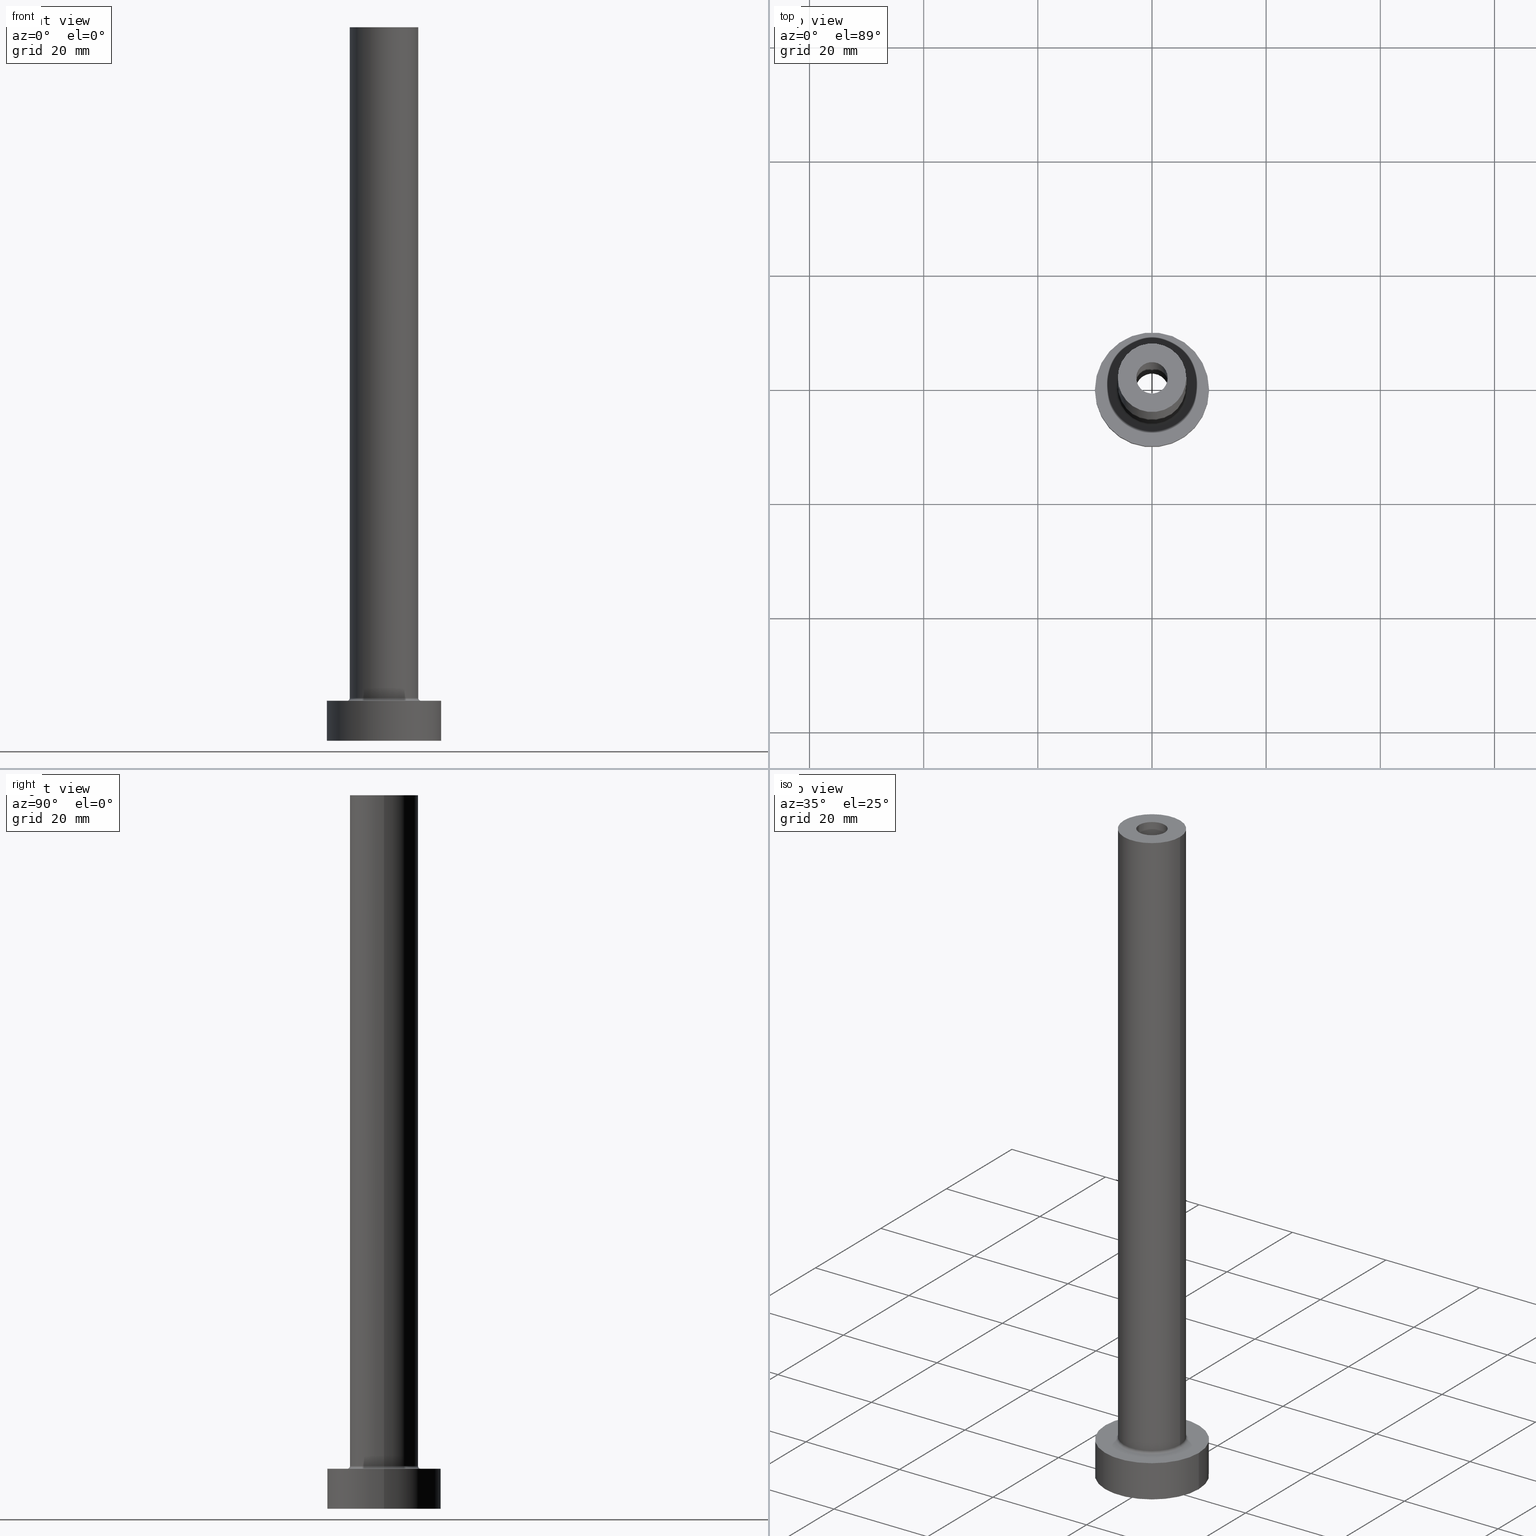
[diagram: canonical four-view strip — front | top / right | iso, engineering-drawing reading convention]
A machine part, canonical four-view strip (front | top / right | iso — engineering-drawing reading convention). The complete STEP part file that produces these views, byte-faithful:
ISO-10303-21;
HEADER;
FILE_DESCRIPTION (( 'STEP AP203' ),
    '1' );
FILE_NAME ('6ca6.STEP',
    '2023-02-13T15:56:22',
    ( '' ),
    ( '' ),
    'SwSTEP 2.0',
    'SolidWorks 2019',
    '' );
FILE_SCHEMA (( 'CONFIG_CONTROL_DESIGN' ));
ENDSEC;

DATA;
#1 = VERTEX_POINT ( 'NONE', #100 ) ;
#2 = FACE_BOUND ( 'NONE', #112, .T. ) ;
#3 = APPROVAL ( #46, 'NEUR�EN�' ) ;
#4 = DIRECTION ( 'NONE',  ( -0.000000000000000000, -0.000000000000000000, -1.000000000000000000 ) ) ;
#5 = ORIENTED_EDGE ( 'NONE', *, *, #302, .F. ) ;
#6 = LINE ( 'NONE', #214, #7 ) ;
#7 = VECTOR ( 'NONE', #350, 1000.000000000000000 ) ;
#8 = PERSON_AND_ORGANIZATION_ROLE ( 'creator' ) ;
#9 = EDGE_CURVE ( 'NONE', #28, #1, #431, .T. ) ;
#10 = PERSON_AND_ORGANIZATION_ROLE ( 'design_supplier' ) ;
#11 = PERSON_AND_ORGANIZATION ( #146, #275 ) ;
#12 = VECTOR ( 'NONE', #396, 1000.000000000000000 ) ;
#13 = PLANE ( 'NONE',  #339 ) ;
#14 = VERTEX_POINT ( 'NONE', #104 ) ;
#15 = CARTESIAN_POINT ( 'NONE',  ( 0.000000000000000000, 0.000000000000000000, 80.00000000000000000 ) ) ;
#16 = EDGE_CURVE ( 'NONE', #460, #14, #407, .T. ) ;
#17 = ORIENTED_EDGE ( 'NONE', *, *, #385, .T. ) ;
#18 = CARTESIAN_POINT ( 'NONE',  ( -6.500000000000000888, 7.960204194457796463E-16, 7.500000000000007105 ) ) ;
#19 = ORIENTED_EDGE ( 'NONE', *, *, #194, .F. ) ;
#20 = EDGE_CURVE ( 'NONE', #106, #128, #195, .T. ) ;
#21 = LINE ( 'NONE', #342, #56 ) ;
#22 = ORIENTED_EDGE ( 'NONE', *, *, #330, .T. ) ;
#23 = CARTESIAN_POINT ( 'NONE',  ( 0.000000000000000000, 0.000000000000000000, 0.000000000000000000 ) ) ;
#24 = CARTESIAN_POINT ( 'NONE',  ( 2.750000000000000000, 3.367778697655220519E-16, 125.0000000000000000 ) ) ;
#25 = ORIENTED_EDGE ( 'NONE', *, *, #202, .T. ) ;
#26 = AXIS2_PLACEMENT_3D ( 'NONE', #114, #295, #374 ) ;
#27 = ADVANCED_FACE ( 'NONE', ( #161 ), #232, .T. ) ;
#28 = VERTEX_POINT ( 'NONE', #410 ) ;
#29 = LINE ( 'NONE', #24, #322 ) ;
#30 = DIRECTION ( 'NONE',  ( 1.000000000000000000, 0.000000000000000000, 0.000000000000000000 ) ) ;
#31 = ORIENTED_EDGE ( 'NONE', *, *, #16, .T. ) ;
#32 = FACE_BOUND ( 'NONE', #309, .T. ) ;
#33 = DIRECTION ( 'NONE',  ( 1.000000000000000000, 0.000000000000000000, 0.000000000000000000 ) ) ;
#34 = AXIS2_PLACEMENT_3D ( 'NONE', #303, #88, #30 ) ;
#35 = VECTOR ( 'NONE', #274, 1000.000000000000000 ) ;
#36 = CC_DESIGN_PERSON_AND_ORGANIZATION_ASSIGNMENT ( #86, #364, ( #327 ) ) ;
#37 = FACE_OUTER_BOUND ( 'NONE', #370, .T. ) ;
#38 = CARTESIAN_POINT ( 'NONE',  ( -6.500000000000000888, 7.960204194457796463E-16, 7.000000000000002665 ) ) ;
#39 = DIRECTION ( 'NONE',  ( 1.000000000000000000, 0.000000000000000000, 0.000000000000000000 ) ) ;
#40 =( LENGTH_UNIT ( ) NAMED_UNIT ( * ) SI_UNIT ( .MILLI., .METRE. ) );
#41 = ADVANCED_FACE ( 'NONE', ( #441 ), #224, .F. ) ;
#42 = DIRECTION ( 'NONE',  ( 1.000000000000000000, 0.000000000000000000, -0.000000000000000000 ) ) ;
#43 = VERTEX_POINT ( 'NONE', #126 ) ;
#44 = LOCAL_TIME ( 16, 56, 22.00000000000000000, #265 ) ;
#45 = VECTOR ( 'NONE', #47, 1000.000000000000000 ) ;
#46 = APPROVAL_STATUS ( 'not_yet_approved' ) ;
#47 = DIRECTION ( 'NONE',  ( 0.000000000000000000, 0.000000000000000000, -1.000000000000000000 ) ) ;
#48 = CC_DESIGN_PERSON_AND_ORGANIZATION_ASSIGNMENT ( #411, #10, ( #73 ) ) ;
#49 = CALENDAR_DATE ( 2023, 13, 2 ) ;
#50 = APPROVAL ( #325, 'NEUR�EN�' ) ;
#51 = AXIS2_PLACEMENT_3D ( 'NONE', #289, #68, #108 ) ;
#52 = EDGE_CURVE ( 'NONE', #406, #65, #105, .T. ) ;
#53 = DIRECTION ( 'NONE',  ( 1.000000000000000000, 0.000000000000000000, 0.000000000000000000 ) ) ;
#54 = VERTEX_POINT ( 'NONE', #249 ) ;
#55 = AXIS2_PLACEMENT_3D ( 'NONE', #247, #144, #461 ) ;
#56 = VECTOR ( 'NONE', #136, 1000.000000000000000 ) ;
#57 = DIRECTION ( 'NONE',  ( -1.000000000000000000, 1.224646799147351482E-16, 0.000000000000000000 ) ) ;
#58 = DIRECTION ( 'NONE',  ( 0.000000000000000000, 0.000000000000000000, 1.000000000000000000 ) ) ;
#59 = DIRECTION ( 'NONE',  ( -0.000000000000000000, -0.000000000000000000, -1.000000000000000000 ) ) ;
#60 = ORIENTED_EDGE ( 'NONE', *, *, #83, .T. ) ;
#61 = ORIENTED_EDGE ( 'NONE', *, *, #385, .F. ) ;
#62 = DIRECTION ( 'NONE',  ( 0.000000000000000000, 0.000000000000000000, -1.000000000000000000 ) ) ;
#63 = AXIS2_PLACEMENT_3D ( 'NONE', #414, #169, #204 ) ;
#64 = CARTESIAN_POINT ( 'NONE',  ( 0.000000000000000000, 0.000000000000000000, 7.000000000000000000 ) ) ;
#65 = VERTEX_POINT ( 'NONE', #254 ) ;
#66 = AXIS2_PLACEMENT_3D ( 'NONE', #305, #389, #376 ) ;
#67 = CARTESIAN_POINT ( 'NONE',  ( 0.000000000000000000, 0.000000000000000000, 80.00000000000000000 ) ) ;
#68 = DIRECTION ( 'NONE',  ( 0.000000000000000000, 0.000000000000000000, 1.000000000000000000 ) ) ;
#69 = CARTESIAN_POINT ( 'NONE',  ( 0.000000000000000000, 0.000000000000000000, 125.0000000000000000 ) ) ;
#70 = EDGE_CURVE ( 'NONE', #160, #345, #219, .T. ) ;
#71 = DIRECTION ( 'NONE',  ( 1.000000000000000000, 0.000000000000000000, 0.000000000000000000 ) ) ;
#72 = MECHANICAL_CONTEXT ( 'NONE', #148, 'mechanical' ) ;
#73 = PRODUCT_DEFINITION_FORMATION_WITH_SPECIFIED_SOURCE ( 'LIBOVOLN�', '', #327, .NOT_KNOWN. ) ;
#74 = VECTOR ( 'NONE', #178, 1000.000000000000000 ) ;
#75 = EDGE_CURVE ( 'NONE', #152, #160, #253, .T. ) ;
#76 = DIRECTION ( 'NONE',  ( 0.000000000000000000, 0.000000000000000000, 1.000000000000000000 ) ) ;
#77 = EDGE_LOOP ( 'NONE', ( #310, #212 ) ) ;
#78 = CALENDAR_DATE ( 2023, 13, 2 ) ;
#79 = ORIENTED_EDGE ( 'NONE', *, *, #163, .F. ) ;
#80 = LINE ( 'NONE', #371, #45 ) ;
#81 = APPROVAL_ROLE ( '' ) ;
#82 = ORIENTED_EDGE ( 'NONE', *, *, #351, .T. ) ;
#83 = EDGE_CURVE ( 'NONE', #43, #434, #222, .T. ) ;
#84 = COORDINATED_UNIVERSAL_TIME_OFFSET ( 1, 0, .AHEAD. ) ;
#85 = CC_DESIGN_APPROVAL ( #50, ( #453 ) ) ;
#86 = PERSON_AND_ORGANIZATION ( #146, #275 ) ;
#87 = ADVANCED_FACE ( 'NONE', ( #227, #192 ), #13, .F. ) ;
#88 = DIRECTION ( 'NONE',  ( 0.000000000000000000, 0.000000000000000000, 1.000000000000000000 ) ) ;
#89 = CYLINDRICAL_SURFACE ( 'NONE', #418, 6.000000000000000888 ) ;
#90 = LOCAL_TIME ( 16, 56, 22.00000000000000000, #369 ) ;
#91 = CARTESIAN_POINT ( 'NONE',  ( 10.00000000000000000, 1.224646799147353256E-15, 7.000000000000000000 ) ) ;
#92 = DIRECTION ( 'NONE',  ( 0.000000000000000000, 0.000000000000000000, 1.000000000000000000 ) ) ;
#93 = EDGE_CURVE ( 'NONE', #54, #345, #409, .T. ) ;
#94 = ORIENTED_EDGE ( 'NONE', *, *, #271, .T. ) ;
#95 = DIRECTION ( 'NONE',  ( 0.000000000000000000, -1.000000000000000000, 0.000000000000000000 ) ) ;
#96 = ORIENTED_EDGE ( 'NONE', *, *, #271, .F. ) ;
#97 = APPROVAL_PERSON_ORGANIZATION ( #228, #122, #81 ) ;
#98 = CARTESIAN_POINT ( 'NONE',  ( 0.000000000000000000, 0.000000000000000000, 7.500000000000007105 ) ) ;
#99 = CIRCLE ( 'NONE', #331, 6.500000000000000888 ) ;
#100 = CARTESIAN_POINT ( 'NONE',  ( 2.750000000000000000, 3.367778697655220519E-16, 80.00000000000000000 ) ) ;
#101 = ADVANCED_BREP_SHAPE_REPRESENTATION ( '6ca6', ( #153, #157 ), #132 ) ;
#102 = EDGE_CURVE ( 'NONE', #460, #406, #80, .T. ) ;
#103 = APPLICATION_PROTOCOL_DEFINITION ( 'international standard', 'config_control_design', 1994, #148 ) ;
#104 = CARTESIAN_POINT ( 'NONE',  ( -2.899999999999999911, 0.000000000000000000, 80.00000000000000000 ) ) ;
#105 = CIRCLE ( 'NONE', #63, 2.899999999999999911 ) ;
#106 = VERTEX_POINT ( 'NONE', #334 ) ;
#107 = EDGE_CURVE ( 'NONE', #259, #137, #99, .T. ) ;
#108 = DIRECTION ( 'NONE',  ( 1.000000000000000000, 0.000000000000000000, 0.000000000000000000 ) ) ;
#109 = CIRCLE ( 'NONE', #378, 0.5000000000000004441 ) ;
#110 = CARTESIAN_POINT ( 'NONE',  ( 0.000000000000000000, 0.000000000000000000, 0.000000000000000000 ) ) ;
#111 = PERSON_AND_ORGANIZATION ( #146, #275 ) ;
#112 = EDGE_LOOP ( 'NONE', ( #320, #206 ) ) ;
#113 = APPROVAL_ROLE ( '' ) ;
#114 = CARTESIAN_POINT ( 'NONE',  ( 0.000000000000000000, 0.000000000000000000, 7.000000000000000000 ) ) ;
#115 = PRODUCT_DEFINITION_SHAPE ( 'NONE', 'NONE',  #417 ) ;
#116 = EDGE_CURVE ( 'NONE', #65, #406, #124, .T. ) ;
#117 = COORDINATED_UNIVERSAL_TIME_OFFSET ( 1, 0, .AHEAD. ) ;
#118 = CARTESIAN_POINT ( 'NONE',  ( 0.000000000000000000, 0.000000000000000000, 125.0000000000000000 ) ) ;
#119 = EDGE_LOOP ( 'NONE', ( #425, #284, #25, #164 ) ) ;
#120 = SHAPE_DEFINITION_REPRESENTATION ( #115, #101 ) ;
#121 = ORIENTED_EDGE ( 'NONE', *, *, #252, .F. ) ;
#122 = APPROVAL ( #151, 'NEUR�EN�' ) ;
#123 = AXIS2_PLACEMENT_3D ( 'NONE', #133, #448, #53 ) ;
#124 = CIRCLE ( 'NONE', #143, 2.899999999999999911 ) ;
#125 = DIRECTION ( 'NONE',  ( 1.224646799147353207E-16, 1.000000000000000000, -0.000000000000000000 ) ) ;
#126 = CARTESIAN_POINT ( 'NONE',  ( -2.750000000000000000, 0.000000000000000000, 125.0000000000000000 ) ) ;
#127 = CARTESIAN_POINT ( 'NONE',  ( 6.500000000000000888, 0.000000000000000000, 7.500000000000007105 ) ) ;
#128 = VERTEX_POINT ( 'NONE', #344 ) ;
#129 = CARTESIAN_POINT ( 'NONE',  ( 6.000000000000000888, 7.347880794884120722E-16, 125.0000000000000000 ) ) ;
#130 = CARTESIAN_POINT ( 'NONE',  ( -6.000000000000000888, 0.000000000000000000, 125.0000000000000000 ) ) ;
#131 = CIRCLE ( 'NONE', #401, 10.00000000000000000 ) ;
#132 =( GEOMETRIC_REPRESENTATION_CONTEXT ( 3 ) GLOBAL_UNCERTAINTY_ASSIGNED_CONTEXT ( ( #421 ) ) GLOBAL_UNIT_ASSIGNED_CONTEXT ( ( #40, #147, #286 ) ) REPRESENTATION_CONTEXT ( 'NONE', 'WORKASPACE' ) );
#133 = CARTESIAN_POINT ( 'NONE',  ( 0.000000000000000000, 0.000000000000000000, 80.00000000000000000 ) ) ;
#134 = ORIENTED_EDGE ( 'NONE', *, *, #20, .T. ) ;
#135 = ORIENTED_EDGE ( 'NONE', *, *, #163, .T. ) ;
#136 = DIRECTION ( 'NONE',  ( 0.000000000000000000, 0.000000000000000000, -1.000000000000000000 ) ) ;
#137 = VERTEX_POINT ( 'NONE', #38 ) ;
#138 = PLANE ( 'NONE',  #268 ) ;
#139 = AXIS2_PLACEMENT_3D ( 'NONE', #149, #393, #145 ) ;
#140 = ORIENTED_EDGE ( 'NONE', *, *, #367, .T. ) ;
#141 = AXIS2_PLACEMENT_3D ( 'NONE', #183, #58, #306 ) ;
#142 = ORIENTED_EDGE ( 'NONE', *, *, #252, .T. ) ;
#143 = AXIS2_PLACEMENT_3D ( 'NONE', #23, #307, #276 ) ;
#144 = DIRECTION ( 'NONE',  ( 0.000000000000000000, 0.000000000000000000, 1.000000000000000000 ) ) ;
#145 = DIRECTION ( 'NONE',  ( 1.000000000000000000, 0.000000000000000000, 0.000000000000000000 ) ) ;
#146 = PERSON ( 'NEUR�EN�', 'NEUR�EN�', 'NEUR�EN�', ('NEUR�EN�'), ('NEUR�EN�'), ('NEUR�EN�') ) ;
#147 =( NAMED_UNIT ( * ) PLANE_ANGLE_UNIT ( ) SI_UNIT ( $, .RADIAN. ) );
#148 = APPLICATION_CONTEXT ( 'configuration controlled 3d designs of mechanical parts and assemblies' ) ;
#149 = CARTESIAN_POINT ( 'NONE',  ( 0.000000000000000000, 0.000000000000000000, 80.00000000000000000 ) ) ;
#150 = DIRECTION ( 'NONE',  ( -1.000000000000000000, 0.000000000000000000, 0.000000000000000000 ) ) ;
#151 = APPROVAL_STATUS ( 'not_yet_approved' ) ;
#152 = VERTEX_POINT ( 'NONE', #395 ) ;
#153 = MANIFOLD_SOLID_BREP ( 'Odebrat vysunut�m4', #338 ) ;
#154 = DATE_AND_TIME ( #49, #44 ) ;
#155 = ADVANCED_FACE ( 'NONE', ( #2, #316 ), #248, .T. ) ;
#156 = CARTESIAN_POINT ( 'NONE',  ( 0.000000000000000000, 0.000000000000000000, 7.500000000000007105 ) ) ;
#157 = AXIS2_PLACEMENT_3D ( 'NONE', #251, #359, #429 ) ;
#158 = DIRECTION ( 'NONE',  ( 1.000000000000000000, 0.000000000000000000, -0.000000000000000000 ) ) ;
#159 = CALENDAR_DATE ( 2023, 13, 2 ) ;
#160 = VERTEX_POINT ( 'NONE', #130 ) ;
#161 = FACE_OUTER_BOUND ( 'NONE', #388, .T. ) ;
#162 = DIRECTION ( 'NONE',  ( 1.000000000000000000, 0.000000000000000000, -0.000000000000000000 ) ) ;
#163 = EDGE_CURVE ( 'NONE', #128, #106, #131, .T. ) ;
#164 = ORIENTED_EDGE ( 'NONE', *, *, #450, .T. ) ;
#165 = AXIS2_PLACEMENT_3D ( 'NONE', #362, #324, #71 ) ;
#166 = ORIENTED_EDGE ( 'NONE', *, *, #70, .F. ) ;
#167 = CARTESIAN_POINT ( 'NONE',  ( 6.500000000000000888, 0.000000000000000000, 7.000000000000002665 ) ) ;
#168 = CARTESIAN_POINT ( 'NONE',  ( 0.000000000000000000, 0.000000000000000000, 125.0000000000000000 ) ) ;
#169 = DIRECTION ( 'NONE',  ( -0.000000000000000000, -0.000000000000000000, -1.000000000000000000 ) ) ;
#170 = DIRECTION ( 'NONE',  ( 1.000000000000000000, 0.000000000000000000, 0.000000000000000000 ) ) ;
#171 = EDGE_CURVE ( 'NONE', #128, #357, #368, .T. ) ;
#172 = FACE_OUTER_BOUND ( 'NONE', #201, .T. ) ;
#173 = DIRECTION ( 'NONE',  ( 0.000000000000000000, 0.000000000000000000, 1.000000000000000000 ) ) ;
#174 = AXIS2_PLACEMENT_3D ( 'NONE', #352, #221, #394 ) ;
#175 = ORIENTED_EDGE ( 'NONE', *, *, #190, .T. ) ;
#176 = DIRECTION ( 'NONE',  ( 0.000000000000000000, 0.000000000000000000, -1.000000000000000000 ) ) ;
#177 = EDGE_LOOP ( 'NONE', ( #134, #135 ) ) ;
#178 = DIRECTION ( 'NONE',  ( -0.000000000000000000, -0.000000000000000000, -1.000000000000000000 ) ) ;
#179 = ADVANCED_FACE ( 'NONE', ( #172 ), #89, .T. ) ;
#180 = FACE_OUTER_BOUND ( 'NONE', #384, .T. ) ;
#181 = AXIS2_PLACEMENT_3D ( 'NONE', #210, #62, #341 ) ;
#182 = DIRECTION ( 'NONE',  ( 1.000000000000000000, 0.000000000000000000, -0.000000000000000000 ) ) ;
#183 = CARTESIAN_POINT ( 'NONE',  ( 0.000000000000000000, 0.000000000000000000, 125.0000000000000000 ) ) ;
#184 = DIRECTION ( 'NONE',  ( 0.000000000000000000, 0.000000000000000000, 1.000000000000000000 ) ) ;
#185 = EDGE_LOOP ( 'NONE', ( #392, #196, #140, #336 ) ) ;
#186 = DIRECTION ( 'NONE',  ( 0.000000000000000000, 0.000000000000000000, 1.000000000000000000 ) ) ;
#187 = APPROVAL_DATE_TIME ( #366, #122 ) ;
#188 = ORIENTED_EDGE ( 'NONE', *, *, #337, .T. ) ;
#189 = DATE_TIME_ROLE ( 'classification_date' ) ;
#190 = EDGE_CURVE ( 'NONE', #1, #28, #257, .T. ) ;
#191 = CARTESIAN_POINT ( 'NONE',  ( 0.000000000000000000, 0.000000000000000000, 7.000000000000000000 ) ) ;
#192 = FACE_OUTER_BOUND ( 'NONE', #277, .T. ) ;
#193 = CC_DESIGN_APPROVAL ( #3, ( #73 ) ) ;
#194 = EDGE_CURVE ( 'NONE', #345, #137, #109, .T. ) ;
#195 = CIRCLE ( 'NONE', #317, 10.00000000000000000 ) ;
#196 = ORIENTED_EDGE ( 'NONE', *, *, #311, .T. ) ;
#197 = CYLINDRICAL_SURFACE ( 'NONE', #174, 2.899999999999999911 ) ;
#198 = APPROVAL_PERSON_ORGANIZATION ( #328, #3, #293 ) ;
#199 = AXIS2_PLACEMENT_3D ( 'NONE', #207, #312, #423 ) ;
#200 = CYLINDRICAL_SURFACE ( 'NONE', #181, 2.899999999999999911 ) ;
#201 = EDGE_LOOP ( 'NONE', ( #298, #22, #353, #166 ) ) ;
#202 = EDGE_CURVE ( 'NONE', #106, #243, #241, .T. ) ;
#203 = DIRECTION ( 'NONE',  ( -1.000000000000000000, 0.000000000000000000, 0.000000000000000000 ) ) ;
#204 = DIRECTION ( 'NONE',  ( 1.000000000000000000, 0.000000000000000000, 0.000000000000000000 ) ) ;
#205 = EDGE_LOOP ( 'NONE', ( #121, #217, #459, #343 ) ) ;
#206 = ORIENTED_EDGE ( 'NONE', *, *, #302, .T. ) ;
#207 = CARTESIAN_POINT ( 'NONE',  ( 0.000000000000000000, 0.000000000000000000, 7.500000000000007105 ) ) ;
#208 = ADVANCED_FACE ( 'NONE', ( #235 ), #200, .F. ) ;
#209 = ORIENTED_EDGE ( 'NONE', *, *, #234, .T. ) ;
#210 = CARTESIAN_POINT ( 'NONE',  ( 0.000000000000000000, 0.000000000000000000, 88.20243866176396352 ) ) ;
#211 = DIRECTION ( 'NONE',  ( 1.000000000000000000, 0.000000000000000000, 0.000000000000000000 ) ) ;
#212 = ORIENTED_EDGE ( 'NONE', *, *, #52, .F. ) ;
#213 = CARTESIAN_POINT ( 'NONE',  ( 0.000000000000000000, 0.000000000000000000, 7.000000000000000000 ) ) ;
#214 = CARTESIAN_POINT ( 'NONE',  ( -2.750000000000000000, 0.000000000000000000, 125.0000000000000000 ) ) ;
#215 = APPROVAL_PERSON_ORGANIZATION ( #111, #50, #113 ) ;
#216 = FACE_OUTER_BOUND ( 'NONE', #283, .T. ) ;
#217 = ORIENTED_EDGE ( 'NONE', *, *, #194, .T. ) ;
#218 = AXIS2_PLACEMENT_3D ( 'NONE', #67, #92, #233 ) ;
#219 = LINE ( 'NONE', #250, #12 ) ;
#220 = DIRECTION ( 'NONE',  ( 0.000000000000000000, 0.000000000000000000, 1.000000000000000000 ) ) ;
#221 = DIRECTION ( 'NONE',  ( 0.000000000000000000, 0.000000000000000000, -1.000000000000000000 ) ) ;
#222 = CIRCLE ( 'NONE', #141, 2.750000000000000000 ) ;
#223 = APPLICATION_PROTOCOL_DEFINITION ( 'international standard', 'config_control_design', 1994, #416 ) ;
#224 = CYLINDRICAL_SURFACE ( 'NONE', #415, 2.750000000000000000 ) ;
#225 = DATE_AND_TIME ( #408, #400 ) ;
#226 = DIRECTION ( 'NONE',  ( -1.000000000000000000, 0.000000000000000000, 0.000000000000000000 ) ) ;
#227 = FACE_BOUND ( 'NONE', #315, .T. ) ;
#228 = PERSON_AND_ORGANIZATION ( #146, #275 ) ;
#229 = DIRECTION ( 'NONE',  ( 0.000000000000000000, 0.000000000000000000, 1.000000000000000000 ) ) ;
#230 = DATE_AND_TIME ( #297, #319 ) ;
#231 = ORIENTED_EDGE ( 'NONE', *, *, #171, .T. ) ;
#232 = CYLINDRICAL_SURFACE ( 'NONE', #26, 10.00000000000000000 ) ;
#233 = DIRECTION ( 'NONE',  ( 1.000000000000000000, 0.000000000000000000, 0.000000000000000000 ) ) ;
#234 = EDGE_CURVE ( 'NONE', #160, #152, #237, .T. ) ;
#235 = FACE_OUTER_BOUND ( 'NONE', #446, .T. ) ;
#236 = ORIENTED_EDGE ( 'NONE', *, *, #330, .F. ) ;
#237 = CIRCLE ( 'NONE', #34, 6.000000000000000888 ) ;
#238 = CIRCLE ( 'NONE', #435, 10.00000000000000000 ) ;
#239 = FACE_OUTER_BOUND ( 'NONE', #119, .T. ) ;
#240 = DESIGN_CONTEXT ( 'detailed design', #416, 'design' ) ;
#241 = LINE ( 'NONE', #387, #74 ) ;
#242 = ADVANCED_FACE ( 'NONE', ( #239 ), #449, .T. ) ;
#243 = VERTEX_POINT ( 'NONE', #270 ) ;
#244 = DIRECTION ( 'NONE',  ( -1.000000000000000000, 0.000000000000000000, 0.000000000000000000 ) ) ;
#245 = CIRCLE ( 'NONE', #123, 2.899999999999999911 ) ;
#246 = ORIENTED_EDGE ( 'NONE', *, *, #102, .T. ) ;
#247 = CARTESIAN_POINT ( 'NONE',  ( 0.000000000000000000, 0.000000000000000000, 7.500000000000007105 ) ) ;
#248 = PLANE ( 'NONE',  #355 ) ;
#249 = CARTESIAN_POINT ( 'NONE',  ( 6.000000000000000888, 7.347880794884120722E-16, 7.500000000000007105 ) ) ;
#250 = CARTESIAN_POINT ( 'NONE',  ( -6.000000000000000888, 0.000000000000000000, 125.0000000000000000 ) ) ;
#251 = CARTESIAN_POINT ( 'NONE',  ( 0.000000000000000000, 0.000000000000000000, 0.000000000000000000 ) ) ;
#252 = EDGE_CURVE ( 'NONE', #345, #54, #365, .T. ) ;
#253 = CIRCLE ( 'NONE', #165, 6.000000000000000888 ) ;
#254 = CARTESIAN_POINT ( 'NONE',  ( -2.899999999999999911, 0.000000000000000000, 0.000000000000000000 ) ) ;
#255 = CC_DESIGN_SECURITY_CLASSIFICATION ( #453, ( #73 ) ) ;
#256 = DIRECTION ( 'NONE',  ( 0.000000000000000000, 0.000000000000000000, 1.000000000000000000 ) ) ;
#257 = CIRCLE ( 'NONE', #218, 2.750000000000000000 ) ;
#258 = DIRECTION ( 'NONE',  ( 0.000000000000000000, 0.000000000000000000, 1.000000000000000000 ) ) ;
#259 = VERTEX_POINT ( 'NONE', #167 ) ;
#260 = CC_DESIGN_DATE_AND_TIME_ASSIGNMENT ( #154, #438, ( #417 ) ) ;
#261 = PERSON_AND_ORGANIZATION_ROLE ( 'classification_officer' ) ;
#262 = TOROIDAL_SURFACE ( 'NONE', #55, 6.500000000000000888, 0.5000000000000000000 ) ;
#263 = DIRECTION ( 'NONE',  ( 0.000000000000000000, 0.000000000000000000, -1.000000000000000000 ) ) ;
#264 = VECTOR ( 'NONE', #383, 1000.000000000000000 ) ;
#265 = COORDINATED_UNIVERSAL_TIME_OFFSET ( 1, 0, .AHEAD. ) ;
#266 = APPROVAL_DATE_TIME ( #230, #50 ) ;
#267 = PERSON_AND_ORGANIZATION ( #146, #275 ) ;
#268 = AXIS2_PLACEMENT_3D ( 'NONE', #110, #184, #182 ) ;
#269 = ORIENTED_EDGE ( 'NONE', *, *, #52, .T. ) ;
#270 = CARTESIAN_POINT ( 'NONE',  ( -10.00000000000000000, 0.000000000000000000, 0.000000000000000000 ) ) ;
#271 = EDGE_CURVE ( 'NONE', #14, #65, #21, .T. ) ;
#272 = DIRECTION ( 'NONE',  ( 0.000000000000000000, 0.000000000000000000, -1.000000000000000000 ) ) ;
#273 = ORIENTED_EDGE ( 'NONE', *, *, #311, .F. ) ;
#274 = DIRECTION ( 'NONE',  ( -0.000000000000000000, -0.000000000000000000, -1.000000000000000000 ) ) ;
#275 = ORGANIZATION ( 'NEUR�EN�', 'NEUR�EN�', '' ) ;
#276 = DIRECTION ( 'NONE',  ( 1.000000000000000000, 0.000000000000000000, 0.000000000000000000 ) ) ;
#277 = EDGE_LOOP ( 'NONE', ( #386, #399 ) ) ;
#278 = CARTESIAN_POINT ( 'NONE',  ( 10.00000000000000000, 1.224646799147353256E-15, 0.000000000000000000 ) ) ;
#279 = EDGE_CURVE ( 'NONE', #54, #259, #290, .T. ) ;
#280 = ORIENTED_EDGE ( 'NONE', *, *, #70, .T. ) ;
#281 = ORIENTED_EDGE ( 'NONE', *, *, #367, .F. ) ;
#282 = CARTESIAN_POINT ( 'NONE',  ( 0.000000000000000000, 0.000000000000000000, 125.0000000000000000 ) ) ;
#283 = EDGE_LOOP ( 'NONE', ( #209, #348 ) ) ;
#284 = ORIENTED_EDGE ( 'NONE', *, *, #20, .F. ) ;
#285 = FACE_OUTER_BOUND ( 'NONE', #205, .T. ) ;
#286 =( NAMED_UNIT ( * ) SI_UNIT ( $, .STERADIAN. ) SOLID_ANGLE_UNIT ( ) );
#287 = CARTESIAN_POINT ( 'NONE',  ( 2.899999999999999911, 3.551475717527323832E-16, 0.000000000000000000 ) ) ;
#288 = ORIENTED_EDGE ( 'NONE', *, *, #116, .T. ) ;
#289 = CARTESIAN_POINT ( 'NONE',  ( 0.000000000000000000, 0.000000000000000000, 80.00000000000000000 ) ) ;
#290 = CIRCLE ( 'NONE', #363, 0.5000000000000004441 ) ;
#291 = PLANE ( 'NONE',  #294 ) ;
#292 = ADVANCED_FACE ( 'NONE', ( #346 ), #413, .F. ) ;
#293 = APPROVAL_ROLE ( '' ) ;
#294 = AXIS2_PLACEMENT_3D ( 'NONE', #436, #186, #42 ) ;
#295 = DIRECTION ( 'NONE',  ( -0.000000000000000000, -0.000000000000000000, -1.000000000000000000 ) ) ;
#296 = CC_DESIGN_PERSON_AND_ORGANIZATION_ASSIGNMENT ( #267, #445, ( #73 ) ) ;
#297 = CALENDAR_DATE ( 2023, 13, 2 ) ;
#298 = ORIENTED_EDGE ( 'NONE', *, *, #75, .F. ) ;
#299 = SECURITY_CLASSIFICATION_LEVEL ( 'unclassified' ) ;
#300 = PRODUCT_RELATED_PRODUCT_CATEGORY ( 'detail', '', ( #327 ) ) ;
#301 = TOROIDAL_SURFACE ( 'NONE', #380, 6.500000000000000888, 0.5000000000000000000 ) ;
#302 = EDGE_CURVE ( 'NONE', #137, #259, #447, .T. ) ;
#303 = CARTESIAN_POINT ( 'NONE',  ( 0.000000000000000000, 0.000000000000000000, 125.0000000000000000 ) ) ;
#304 = ORIENTED_EDGE ( 'NONE', *, *, #450, .F. ) ;
#305 = CARTESIAN_POINT ( 'NONE',  ( 0.000000000000000000, 0.000000000000000000, 7.000000000000000000 ) ) ;
#306 = DIRECTION ( 'NONE',  ( 1.000000000000000000, 0.000000000000000000, 0.000000000000000000 ) ) ;
#307 = DIRECTION ( 'NONE',  ( -0.000000000000000000, -0.000000000000000000, -1.000000000000000000 ) ) ;
#308 = DIRECTION ( 'NONE',  ( 0.000000000000000000, 0.000000000000000000, -1.000000000000000000 ) ) ;
#309 = EDGE_LOOP ( 'NONE', ( #333, #273 ) ) ;
#310 = ORIENTED_EDGE ( 'NONE', *, *, #116, .F. ) ;
#311 = EDGE_CURVE ( 'NONE', #434, #43, #332, .T. ) ;
#312 = DIRECTION ( 'NONE',  ( 0.000000000000000000, 0.000000000000000000, 1.000000000000000000 ) ) ;
#313 = EDGE_LOOP ( 'NONE', ( #19, #381, #455, #5 ) ) ;
#314 = FACE_OUTER_BOUND ( 'NONE', #313, .T. ) ;
#315 = EDGE_LOOP ( 'NONE', ( #375, #175 ) ) ;
#316 = FACE_OUTER_BOUND ( 'NONE', #177, .T. ) ;
#317 = AXIS2_PLACEMENT_3D ( 'NONE', #213, #220, #428 ) ;
#318 = CARTESIAN_POINT ( 'NONE',  ( 2.750000000000000000, 3.367778697655220519E-16, 125.0000000000000000 ) ) ;
#319 = LOCAL_TIME ( 16, 56, 22.00000000000000000, #117 ) ;
#320 = ORIENTED_EDGE ( 'NONE', *, *, #107, .T. ) ;
#321 = CARTESIAN_POINT ( 'NONE',  ( 0.000000000000000000, 0.000000000000000000, 0.000000000000000000 ) ) ;
#322 = VECTOR ( 'NONE', #176, 1000.000000000000000 ) ;
#323 = APPROVAL_DATE_TIME ( #225, #3 ) ;
#324 = DIRECTION ( 'NONE',  ( 0.000000000000000000, 0.000000000000000000, 1.000000000000000000 ) ) ;
#325 = APPROVAL_STATUS ( 'not_yet_approved' ) ;
#326 = ORIENTED_EDGE ( 'NONE', *, *, #9, .F. ) ;
#327 = PRODUCT ( '6ca6', '6ca6', '', ( #72 ) ) ;
#328 = PERSON_AND_ORGANIZATION ( #146, #275 ) ;
#329 = DIRECTION ( 'NONE',  ( -0.000000000000000000, -0.000000000000000000, -1.000000000000000000 ) ) ;
#330 = EDGE_CURVE ( 'NONE', #152, #54, #379, .T. ) ;
#331 = AXIS2_PLACEMENT_3D ( 'NONE', #191, #329, #170 ) ;
#332 = CIRCLE ( 'NONE', #420, 2.750000000000000000 ) ;
#333 = ORIENTED_EDGE ( 'NONE', *, *, #83, .F. ) ;
#334 = CARTESIAN_POINT ( 'NONE',  ( -10.00000000000000000, 0.000000000000000000, 7.000000000000000000 ) ) ;
#335 = COORDINATED_UNIVERSAL_TIME_OFFSET ( 1, 0, .AHEAD. ) ;
#336 = ORIENTED_EDGE ( 'NONE', *, *, #190, .F. ) ;
#337 = EDGE_CURVE ( 'NONE', #434, #1, #29, .T. ) ;
#338 = CLOSED_SHELL ( 'NONE', ( #292, #358, #439, #179, #27, #242, #155, #373, #403, #457, #443, #208, #87, #41 ) ) ;
#339 = AXIS2_PLACEMENT_3D ( 'NONE', #15, #229, #162 ) ;
#340 = DIRECTION ( 'NONE',  ( -1.000000000000000000, 0.000000000000000000, 0.000000000000000000 ) ) ;
#341 = DIRECTION ( 'NONE',  ( -1.000000000000000000, 0.000000000000000000, 0.000000000000000000 ) ) ;
#342 = CARTESIAN_POINT ( 'NONE',  ( -2.899999999999999911, 0.000000000000000000, 88.20243866176396352 ) ) ;
#343 = ORIENTED_EDGE ( 'NONE', *, *, #279, .F. ) ;
#344 = CARTESIAN_POINT ( 'NONE',  ( 10.00000000000000000, 1.224646799147353256E-15, 7.000000000000000000 ) ) ;
#345 = VERTEX_POINT ( 'NONE', #454 ) ;
#346 = FACE_OUTER_BOUND ( 'NONE', #458, .T. ) ;
#347 = AXIS2_PLACEMENT_3D ( 'NONE', #282, #272, #203 ) ;
#348 = ORIENTED_EDGE ( 'NONE', *, *, #75, .T. ) ;
#349 = CARTESIAN_POINT ( 'NONE',  ( 0.000000000000000000, 0.000000000000000000, 7.000000000000000000 ) ) ;
#350 = DIRECTION ( 'NONE',  ( 0.000000000000000000, 0.000000000000000000, -1.000000000000000000 ) ) ;
#351 = EDGE_CURVE ( 'NONE', #14, #460, #245, .T. ) ;
#352 = CARTESIAN_POINT ( 'NONE',  ( 0.000000000000000000, 0.000000000000000000, 88.20243866176396352 ) ) ;
#353 = ORIENTED_EDGE ( 'NONE', *, *, #93, .T. ) ;
#354 = CIRCLE ( 'NONE', #390, 10.00000000000000000 ) ;
#355 = AXIS2_PLACEMENT_3D ( 'NONE', #404, #360, #158 ) ;
#356 = CARTESIAN_POINT ( 'NONE',  ( 0.000000000000000000, 0.000000000000000000, 0.000000000000000000 ) ) ;
#357 = VERTEX_POINT ( 'NONE', #278 ) ;
#358 = ADVANCED_FACE ( 'NONE', ( #412 ), #197, .F. ) ;
#359 = DIRECTION ( 'NONE',  ( 0.000000000000000000, 0.000000000000000000, 1.000000000000000000 ) ) ;
#360 = DIRECTION ( 'NONE',  ( 0.000000000000000000, 0.000000000000000000, 1.000000000000000000 ) ) ;
#361 = FACE_BOUND ( 'NONE', #77, .T. ) ;
#362 = CARTESIAN_POINT ( 'NONE',  ( 0.000000000000000000, 0.000000000000000000, 125.0000000000000000 ) ) ;
#363 = AXIS2_PLACEMENT_3D ( 'NONE', #127, #95, #308 ) ;
#364 = PERSON_AND_ORGANIZATION_ROLE ( 'design_owner' ) ;
#365 = CIRCLE ( 'NONE', #199, 6.000000000000000888 ) ;
#366 = DATE_AND_TIME ( #159, #90 ) ;
#367 = EDGE_CURVE ( 'NONE', #43, #28, #6, .T. ) ;
#368 = LINE ( 'NONE', #91, #264 ) ;
#369 = COORDINATED_UNIVERSAL_TIME_OFFSET ( 1, 0, .AHEAD. ) ;
#370 = EDGE_LOOP ( 'NONE', ( #304, #61 ) ) ;
#371 = CARTESIAN_POINT ( 'NONE',  ( 2.899999999999999911, 3.551475717527323832E-16, 88.20243866176396352 ) ) ;
#372 = CC_DESIGN_APPROVAL ( #122, ( #417 ) ) ;
#373 = ADVANCED_FACE ( 'NONE', ( #361, #37 ), #138, .F. ) ;
#374 = DIRECTION ( 'NONE',  ( -1.000000000000000000, 0.000000000000000000, 0.000000000000000000 ) ) ;
#375 = ORIENTED_EDGE ( 'NONE', *, *, #9, .T. ) ;
#376 = DIRECTION ( 'NONE',  ( 1.000000000000000000, 0.000000000000000000, 0.000000000000000000 ) ) ;
#377 = EDGE_LOOP ( 'NONE', ( #82, #246, #269, #96 ) ) ;
#378 = AXIS2_PLACEMENT_3D ( 'NONE', #18, #125, #57 ) ;
#379 = LINE ( 'NONE', #129, #35 ) ;
#380 = AXIS2_PLACEMENT_3D ( 'NONE', #98, #76, #397 ) ;
#381 = ORIENTED_EDGE ( 'NONE', *, *, #93, .F. ) ;
#382 = AXIS2_PLACEMENT_3D ( 'NONE', #156, #444, #211 ) ;
#383 = DIRECTION ( 'NONE',  ( -0.000000000000000000, -0.000000000000000000, -1.000000000000000000 ) ) ;
#384 = EDGE_LOOP ( 'NONE', ( #236, #452, #280, #142 ) ) ;
#385 = EDGE_CURVE ( 'NONE', #357, #243, #238, .T. ) ;
#386 = ORIENTED_EDGE ( 'NONE', *, *, #351, .F. ) ;
#387 = CARTESIAN_POINT ( 'NONE',  ( -10.00000000000000000, 0.000000000000000000, 7.000000000000000000 ) ) ;
#388 = EDGE_LOOP ( 'NONE', ( #79, #231, #17, #430 ) ) ;
#389 = DIRECTION ( 'NONE',  ( -0.000000000000000000, -0.000000000000000000, -1.000000000000000000 ) ) ;
#390 = AXIS2_PLACEMENT_3D ( 'NONE', #356, #256, #402 ) ;
#391 = CC_DESIGN_DATE_AND_TIME_ASSIGNMENT ( #440, #189, ( #453 ) ) ;
#392 = ORIENTED_EDGE ( 'NONE', *, *, #337, .F. ) ;
#393 = DIRECTION ( 'NONE',  ( 0.000000000000000000, 0.000000000000000000, 1.000000000000000000 ) ) ;
#394 = DIRECTION ( 'NONE',  ( -1.000000000000000000, 0.000000000000000000, 0.000000000000000000 ) ) ;
#395 = CARTESIAN_POINT ( 'NONE',  ( 6.000000000000000888, 7.347880794884120722E-16, 125.0000000000000000 ) ) ;
#396 = DIRECTION ( 'NONE',  ( -0.000000000000000000, -0.000000000000000000, -1.000000000000000000 ) ) ;
#397 = DIRECTION ( 'NONE',  ( 1.000000000000000000, 0.000000000000000000, 0.000000000000000000 ) ) ;
#398 = AXIS2_PLACEMENT_3D ( 'NONE', #69, #4, #150 ) ;
#399 = ORIENTED_EDGE ( 'NONE', *, *, #16, .F. ) ;
#400 = LOCAL_TIME ( 16, 56, 22.00000000000000000, #84 ) ;
#401 = AXIS2_PLACEMENT_3D ( 'NONE', #64, #173, #39 ) ;
#402 = DIRECTION ( 'NONE',  ( 1.000000000000000000, 0.000000000000000000, 0.000000000000000000 ) ) ;
#403 = ADVANCED_FACE ( 'NONE', ( #180 ), #405, .T. ) ;
#404 = CARTESIAN_POINT ( 'NONE',  ( 0.000000000000000000, 0.000000000000000000, 7.000000000000000000 ) ) ;
#405 = CYLINDRICAL_SURFACE ( 'NONE', #398, 6.000000000000000888 ) ;
#406 = VERTEX_POINT ( 'NONE', #287 ) ;
#407 = CIRCLE ( 'NONE', #51, 2.899999999999999911 ) ;
#408 = CALENDAR_DATE ( 2023, 13, 2 ) ;
#409 = CIRCLE ( 'NONE', #382, 6.000000000000000888 ) ;
#410 = CARTESIAN_POINT ( 'NONE',  ( -2.750000000000000000, 0.000000000000000000, 80.00000000000000000 ) ) ;
#411 = PERSON_AND_ORGANIZATION ( #146, #275 ) ;
#412 = FACE_OUTER_BOUND ( 'NONE', #377, .T. ) ;
#413 = CYLINDRICAL_SURFACE ( 'NONE', #347, 2.750000000000000000 ) ;
#414 = CARTESIAN_POINT ( 'NONE',  ( 0.000000000000000000, 0.000000000000000000, 0.000000000000000000 ) ) ;
#415 = AXIS2_PLACEMENT_3D ( 'NONE', #118, #263, #226 ) ;
#416 = APPLICATION_CONTEXT ( 'configuration controlled 3d designs of mechanical parts and assemblies' ) ;
#417 = PRODUCT_DEFINITION ( 'NEZN�M�', '', #73, #240 ) ;
#418 = AXIS2_PLACEMENT_3D ( 'NONE', #168, #422, #340 ) ;
#419 = DIRECTION ( 'NONE',  ( 0.000000000000000000, 0.000000000000000000, 1.000000000000000000 ) ) ;
#420 = AXIS2_PLACEMENT_3D ( 'NONE', #456, #419, #451 ) ;
#421 = UNCERTAINTY_MEASURE_WITH_UNIT (LENGTH_MEASURE( 1.000000000000000082E-05 ), #40, 'distance_accuracy_value', 'NONE');
#422 = DIRECTION ( 'NONE',  ( -0.000000000000000000, -0.000000000000000000, -1.000000000000000000 ) ) ;
#423 = DIRECTION ( 'NONE',  ( 1.000000000000000000, 0.000000000000000000, 0.000000000000000000 ) ) ;
#424 = CC_DESIGN_PERSON_AND_ORGANIZATION_ASSIGNMENT ( #442, #8, ( #417 ) ) ;
#425 = ORIENTED_EDGE ( 'NONE', *, *, #171, .F. ) ;
#426 = LOCAL_TIME ( 16, 56, 22.00000000000000000, #335 ) ;
#427 = AXIS2_PLACEMENT_3D ( 'NONE', #349, #59, #244 ) ;
#428 = DIRECTION ( 'NONE',  ( 1.000000000000000000, 0.000000000000000000, 0.000000000000000000 ) ) ;
#429 = DIRECTION ( 'NONE',  ( 1.000000000000000000, 0.000000000000000000, 0.000000000000000000 ) ) ;
#430 = ORIENTED_EDGE ( 'NONE', *, *, #202, .F. ) ;
#431 = CIRCLE ( 'NONE', #139, 2.750000000000000000 ) ;
#432 = CARTESIAN_POINT ( 'NONE',  ( 2.899999999999999911, 3.551475717527323832E-16, 80.00000000000000000 ) ) ;
#433 = CC_DESIGN_PERSON_AND_ORGANIZATION_ASSIGNMENT ( #11, #261, ( #453 ) ) ;
#434 = VERTEX_POINT ( 'NONE', #318 ) ;
#435 = AXIS2_PLACEMENT_3D ( 'NONE', #321, #258, #33 ) ;
#436 = CARTESIAN_POINT ( 'NONE',  ( 0.000000000000000000, 0.000000000000000000, 125.0000000000000000 ) ) ;
#437 = ORIENTED_EDGE ( 'NONE', *, *, #102, .F. ) ;
#438 = DATE_TIME_ROLE ( 'creation_date' ) ;
#439 = ADVANCED_FACE ( 'NONE', ( #285 ), #301, .F. ) ;
#440 = DATE_AND_TIME ( #78, #426 ) ;
#441 = FACE_OUTER_BOUND ( 'NONE', #185, .T. ) ;
#442 = PERSON_AND_ORGANIZATION ( #146, #275 ) ;
#443 = ADVANCED_FACE ( 'NONE', ( #314 ), #262, .F. ) ;
#444 = DIRECTION ( 'NONE',  ( 0.000000000000000000, 0.000000000000000000, 1.000000000000000000 ) ) ;
#445 = PERSON_AND_ORGANIZATION_ROLE ( 'creator' ) ;
#446 = EDGE_LOOP ( 'NONE', ( #437, #31, #94, #288 ) ) ;
#447 = CIRCLE ( 'NONE', #66, 6.500000000000000888 ) ;
#448 = DIRECTION ( 'NONE',  ( 0.000000000000000000, 0.000000000000000000, 1.000000000000000000 ) ) ;
#449 = CYLINDRICAL_SURFACE ( 'NONE', #427, 10.00000000000000000 ) ;
#450 = EDGE_CURVE ( 'NONE', #243, #357, #354, .T. ) ;
#451 = DIRECTION ( 'NONE',  ( 1.000000000000000000, 0.000000000000000000, 0.000000000000000000 ) ) ;
#452 = ORIENTED_EDGE ( 'NONE', *, *, #234, .F. ) ;
#453 = SECURITY_CLASSIFICATION ( '', '', #299 ) ;
#454 = CARTESIAN_POINT ( 'NONE',  ( -6.000000000000000888, 0.000000000000000000, 7.500000000000007105 ) ) ;
#455 = ORIENTED_EDGE ( 'NONE', *, *, #279, .T. ) ;
#456 = CARTESIAN_POINT ( 'NONE',  ( 0.000000000000000000, 0.000000000000000000, 125.0000000000000000 ) ) ;
#457 = ADVANCED_FACE ( 'NONE', ( #32, #216 ), #291, .T. ) ;
#458 = EDGE_LOOP ( 'NONE', ( #60, #188, #326, #281 ) ) ;
#459 = ORIENTED_EDGE ( 'NONE', *, *, #107, .F. ) ;
#460 = VERTEX_POINT ( 'NONE', #432 ) ;
#461 = DIRECTION ( 'NONE',  ( 1.000000000000000000, 0.000000000000000000, 0.000000000000000000 ) ) ;
ENDSEC;
END-ISO-10303-21;
